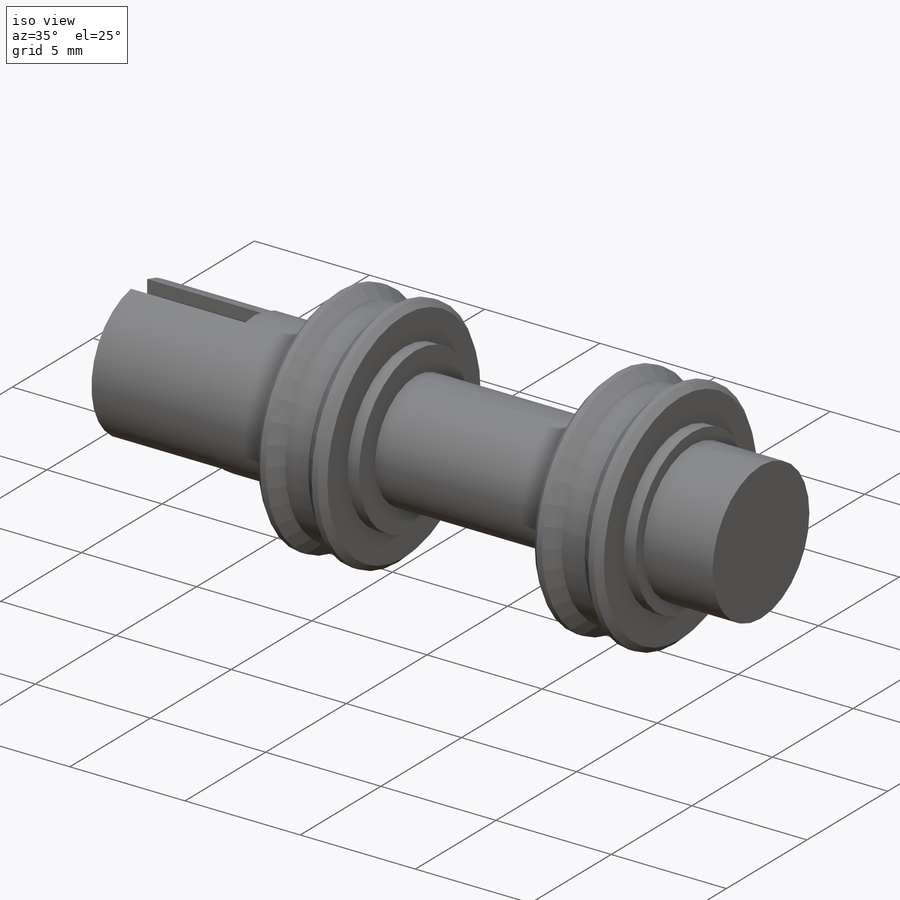
[diagram: iso view]
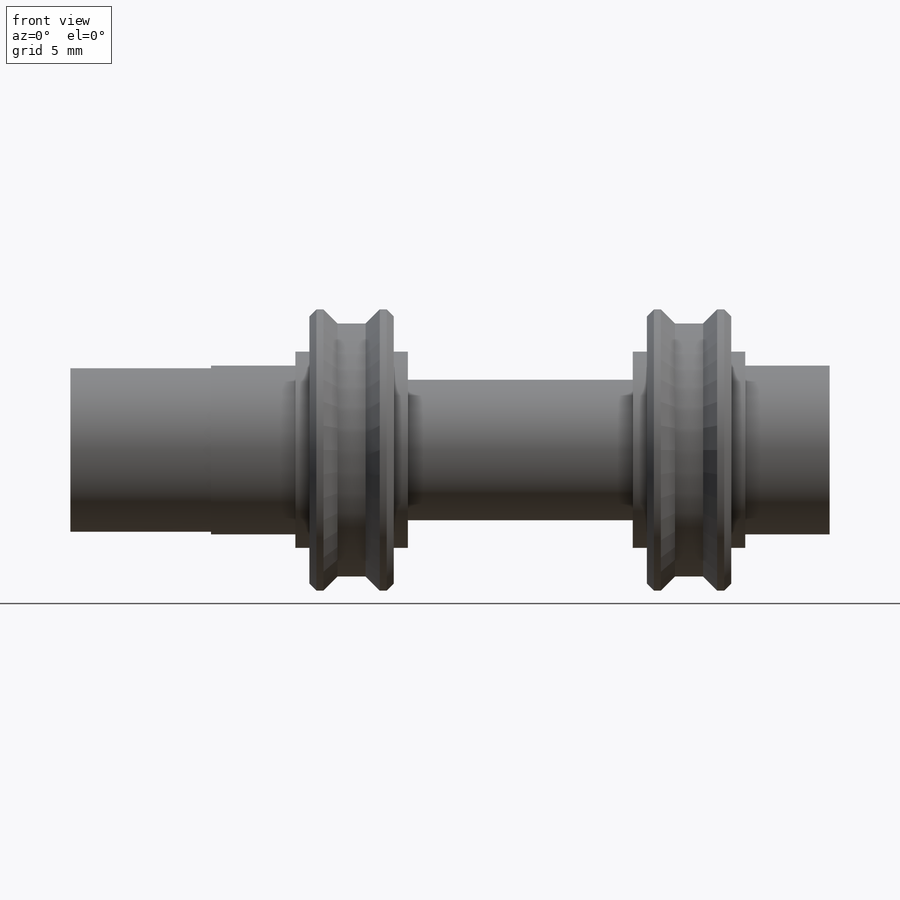
[diagram: front view]
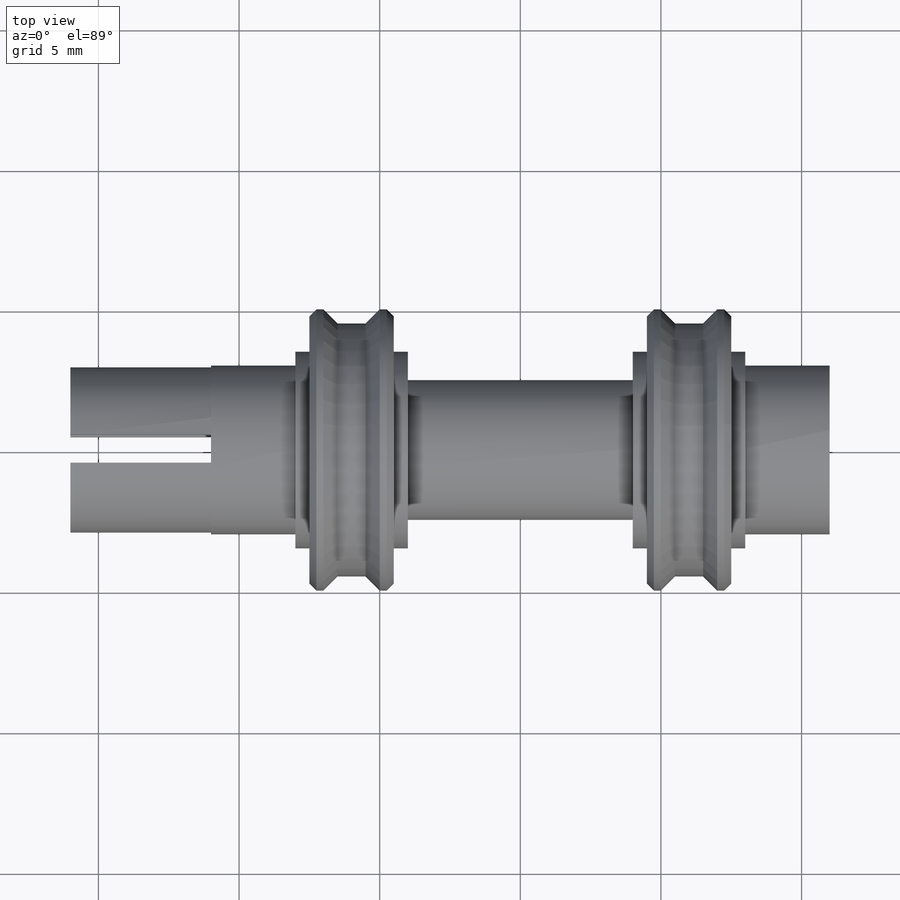
[diagram: top view]
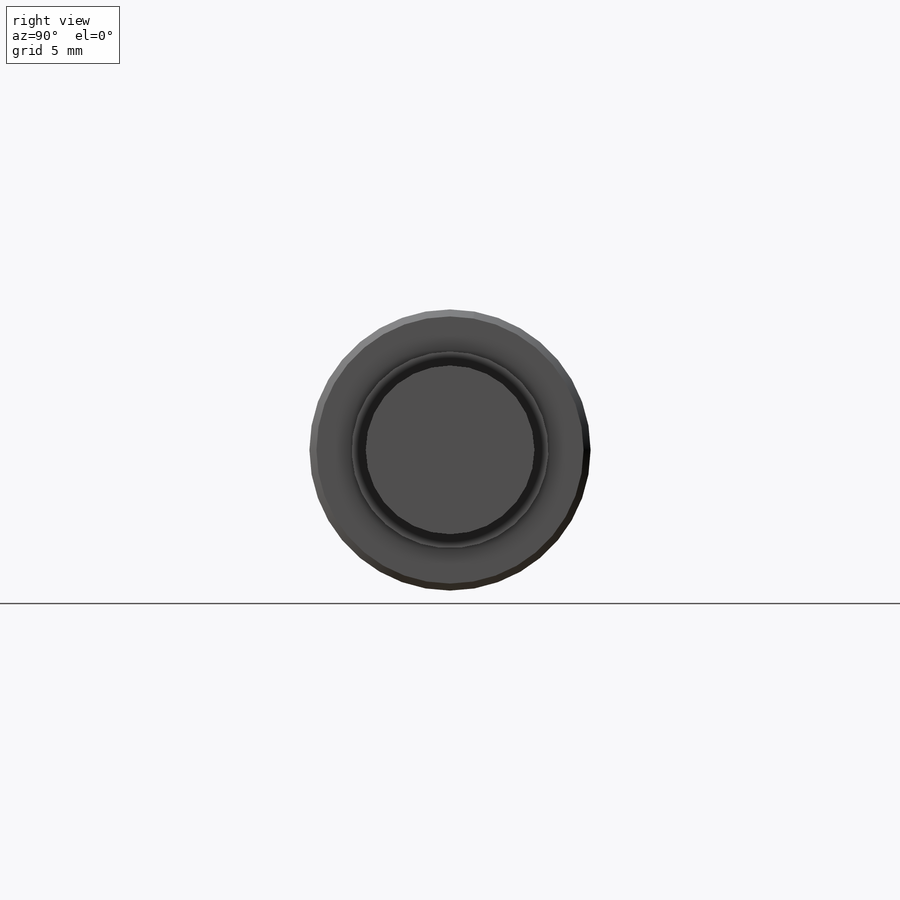
[diagram: right view]
SOLIDWORKS PART (.sldprt)
format: sldprt  version: not decoded by parser v0  size: 303,104 bytes
history: native  units: mm
features: plane x5, sketch x2, material x1, revolve x1, chamfer x1, mirror x1, extrude x1 (+9 scaffold rows collapsed)
feature tree (21):
  scaffold x9  (default folders/planes/origin — collapsed)
  material  "1.4003 (X2CrNi12)"
  plane  "Ebene vorne"
  plane  "Ebene oben"
  plane  "Ebene rechts"
  sketch  "Skizze1"  dims[c1.D1=6.0mm c1.D2=5.0mm c1.D3=10.0mm c1.D4=2.0mm c1.D5=4.0mm c1.D6=0.5mm c1.D7=3.0mm c1.D8=2.0mm c1.D9=10.0mm c1.D10=8.0mm c2.D4=9.0mm c2.D11=2.0mm c2.D2=0.5mm c2.D10=18.0mm c2.D12=5.9mm c2.D8=4.0mm c2.D9=5.0mm]
  revolve  "Rotation1"  Angle=360deg
  chamfer  "Fase1"  Distance=0.25mm Angle=45deg
  mirror  "Spiegeln1"
  plane  "Ebene1"
  plane  "Ebene2"
  sketch  "Skizze2"  dims[c1.D1=4.0mm c1.D3=2.95mm c1.D2=1.0mm c2.D3=10.0mm c2.D2=1.0mm]
  extrude  "Aufsatz-Linear austragen1"  Depth=5mm
decode coverage: 5 of 6 modeling features carry decoded parameters
note: suppression state not decoded; provenance and decode notes live in map.json
